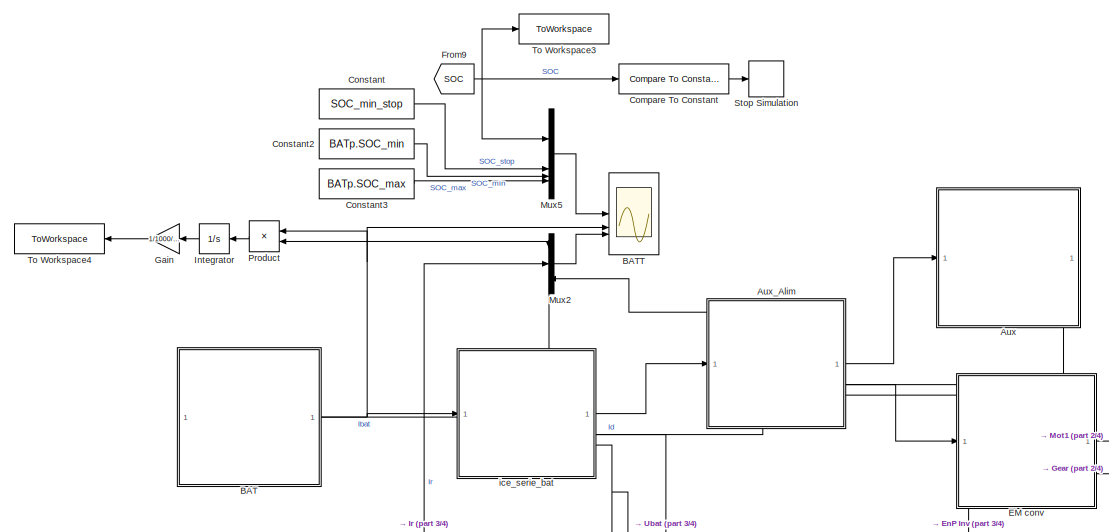
[diagram: root canvas - part 1/4, top left region]
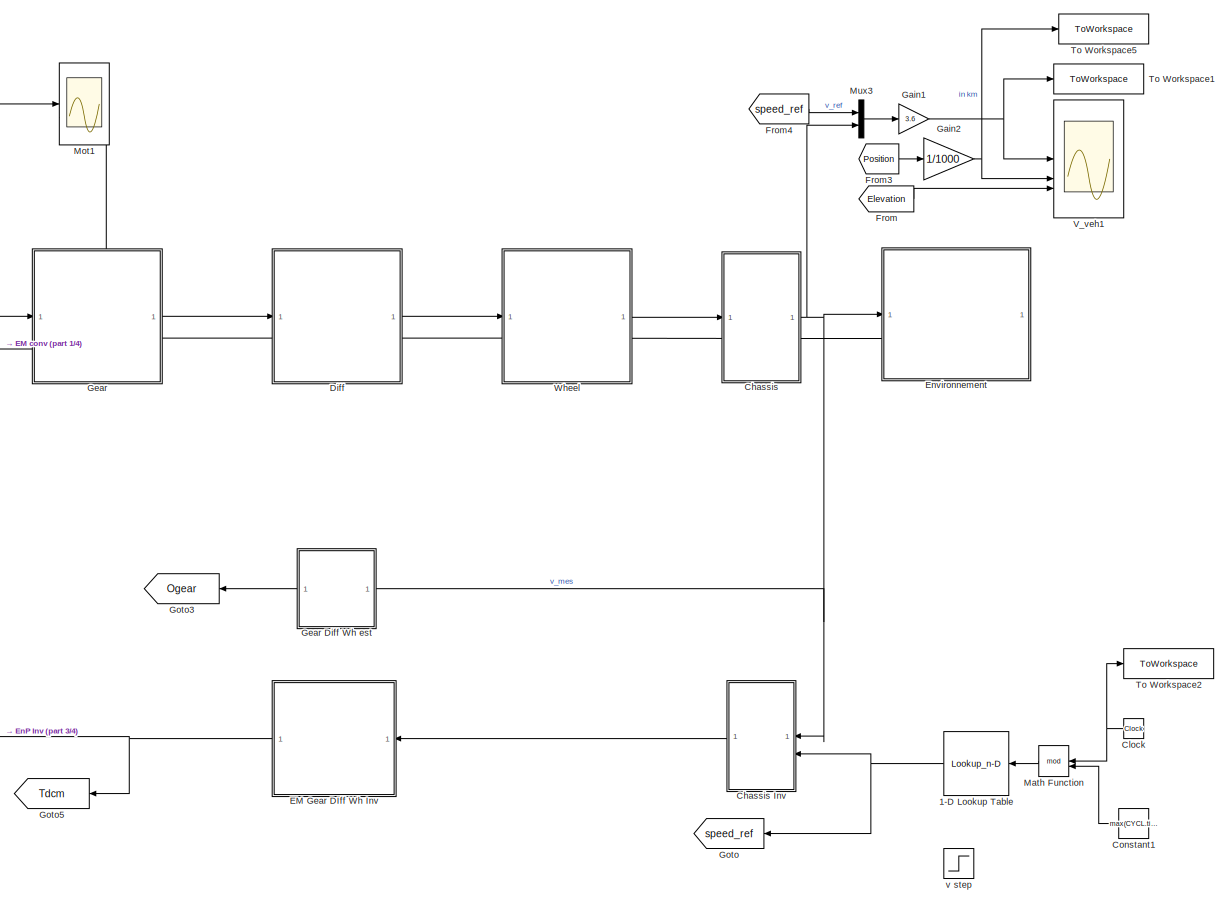
[diagram: root canvas - part 2/4, middle right region]
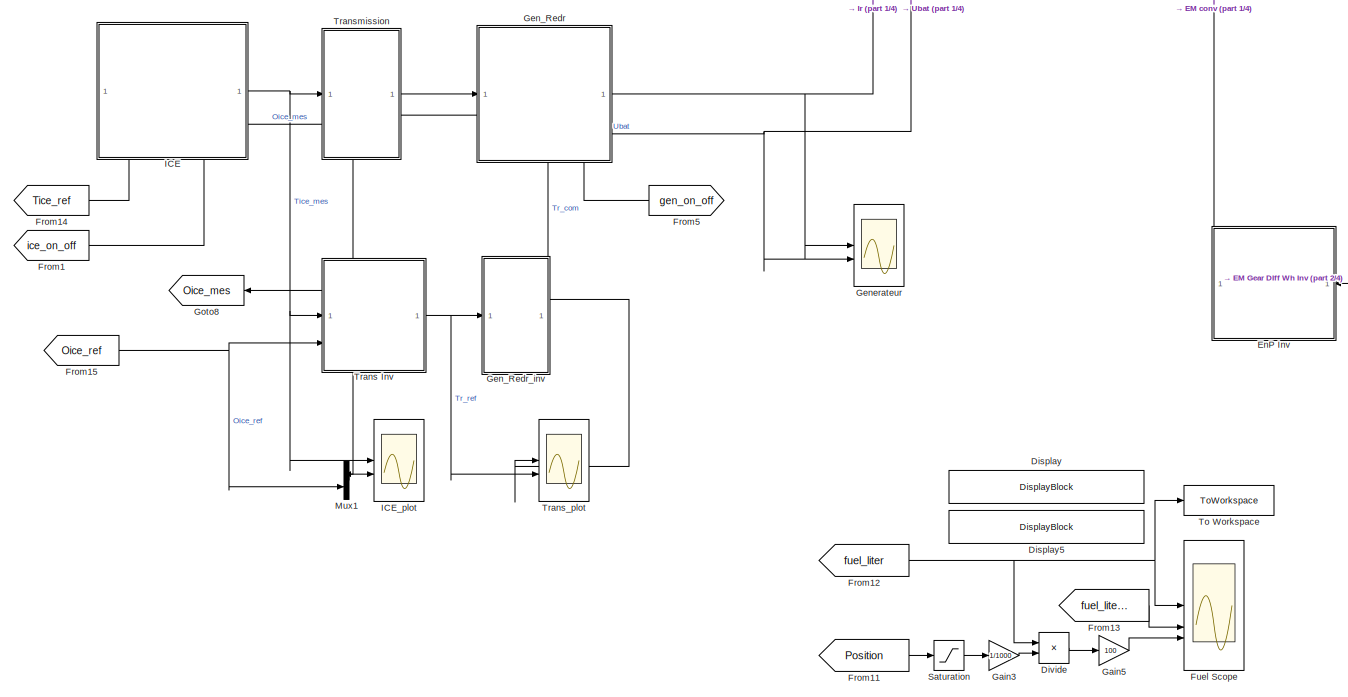
[diagram: root canvas - part 3/4, middle left region]
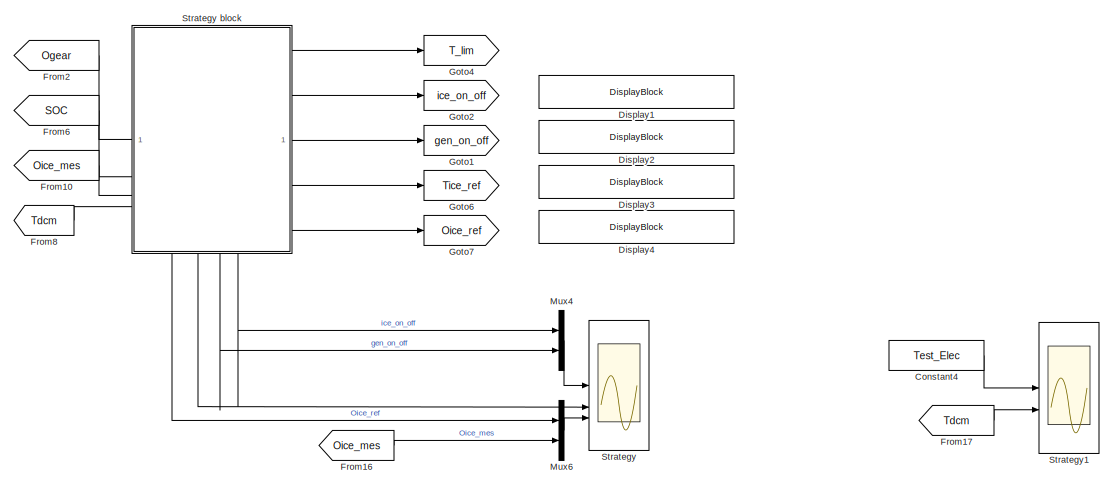
[diagram: root canvas - part 4/4, bottom right region]
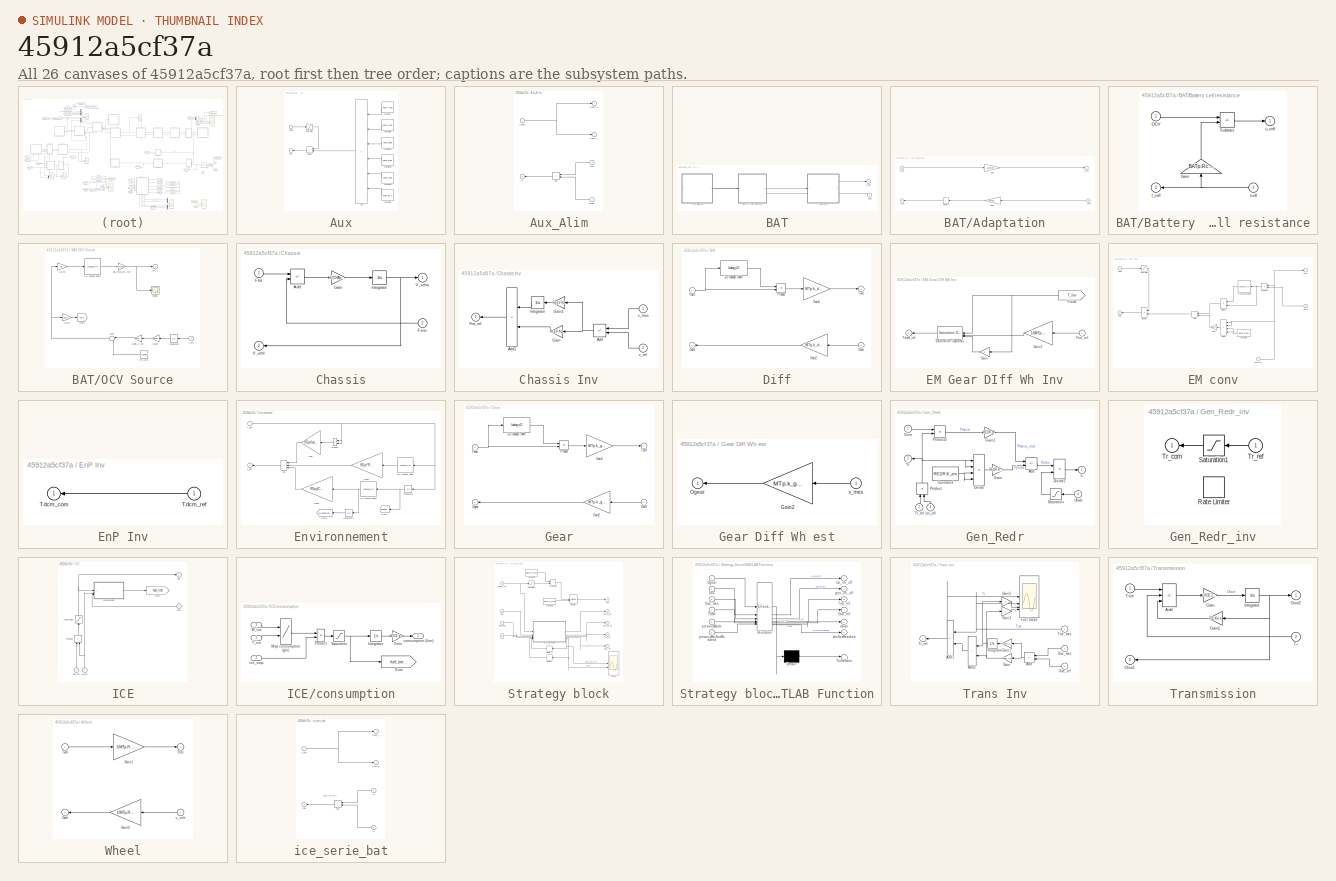
[diagram: thumbnail index - all 26 canvases of the model, root first then tree order]
MODEL slx_45912a5cf37a
KIND model
CONFIG AbsTol = auto
CONFIG EnableMultiTasking = on
CONFIG FixedStep = 1e-2
CONFIG InitFcn = init_hyv
CONFIG MaxStep = 10e-3
CONFIG MinStep = auto
CONFIG RelTol = 1e-3
CONFIG SampleTimeConstraint = Unconstrained
CONFIG SolverName = ode45
CONFIG StartTime = SIM.t_min
CONFIG StopTime = SIM.t_simul
BLOCK [Lookup_n-D] 1-D Lookup Table
  BreakpointsForDimension1 = CYCL.time
  InputPortMap = u0
  InternalRulePriority = Speed
  NameLocation = top
  NumberOfTableDimensions = 1
  RndMeth = Simplest
  Table = CYCL.speed
BLOCK [SubSystem] Aux
  PortSchema = {"entries":[{"content":{"sides":[{"content":{"connectorIds":["In1","Out1"]},"type":"ConnectorPlacement.EquallySpacedRectSide","uuid":"e57ce769-5dfa-4323-9199-18ff4bf0cf0d"},{"content":{"side":"RIGHT"},"type":"ConnectorPlacement.EquallySpacedRectSide","uuid":"ab409fab-d314-4206-bddf-ed026c86ef76"},{"content":{"side":"TOP"},"type":"ConnectorPlacement.EquallySpacedRectSide","uuid":"b908e240-8ad5-4078...<+205ch>
BLOCK [Sum] Aux/Add
  IconShape = rectangular
  Inputs = ++++++
  NameLocation = top
BLOCK [Constant] Aux/Constant
  NameLocation = top
  Value = Paux.Heat
BLOCK [Constant] Aux/Constant1
  NameLocation = top
  Value = Paux.Cool
BLOCK [Constant] Aux/Constant2
  NameLocation = top
  Value = Paux.Light
BLOCK [Constant] Aux/Constant3
  NameLocation = top
  Value = Paux.Disp
BLOCK [Constant] Aux/Constant4
  NameLocation = top
  Value = Paux.Vent
BLOCK [Constant] Aux/Constant5
  NameLocation = top
  Value = Paux.ECU
BLOCK [Product] Aux/Divide
  Inputs = /*
  NameLocation = top
BLOCK [Outport] Aux/Iaux
  InitialOutput = 0
BLOCK [Saturate] Aux/Saturation
  LowerLimit = 10.0
  UpperLimit = inf
BLOCK [Inport] Aux/Ubatt
BLOCK [SubSystem] Aux_Alim
  NameLocation = top
  PortSchema = {"entries":[{"content":{"sides":[{"content":{"connectorIds":["In1","Out3"]},"type":"ConnectorPlacement.EquallySpacedRectSide","uuid":"fe3b80e5-6bea-4454-b396-78d68e4e0983"},{"content":{"connectorIds":["Out1","In2","Out2","In3"],"side":"RIGHT"},"type":"ConnectorPlacement.EquallySpacedRectSide","uuid":"fd9b9ae6-7a3e-4ad6-b5ff-7ff0e231c6c1"},{"content":{"side":"TOP"},"type":"ConnectorPlacement.Equall...<+248ch>
BLOCK [Sum] Aux_Alim/Add
  IconShape = rectangular
  NameLocation = top
BLOCK [Inport] Aux_Alim/Iaux
  NameLocation = top
  Port = 2
BLOCK [Outport] Aux_Alim/Id
  InitialOutput = 0
  Port = 3
BLOCK [Inport] Aux_Alim/Idrive
  NameLocation = top
  Port = 3
BLOCK [Inport] Aux_Alim/Ubatt
BLOCK [Outport] Aux_Alim/Ubatt_1
  InitialOutput = 0
BLOCK [Outport] Aux_Alim/Ubatt_2
  InitialOutput = 0
  Port = 2
BLOCK [SubSystem] BAT
  PortSchema = {"entries":[{"content":{"sides":[{"content":{"connectorIds":[]},"type":"ConnectorPlacement.EquallySpacedRectSide","uuid":"f966fbbf-87fd-4eae-ac75-d366ea856ba9"},{"content":{"connectorIds":["Out1","In1"],"side":"RIGHT"},"type":"ConnectorPlacement.EquallySpacedRectSide","uuid":"019a522f-a65b-4de4-928a-6ec503aa07e1"},{"content":{"connectorIds":[],"side":"TOP"},"type":"ConnectorPlacement.EquallySpaced...<+241ch>
BLOCK [SubSystem] BAT/Adaptation
  PortSchema = {"entries":[{"content":{"sides":[{"content":{"connectorIds":["In1","Out2"]},"type":"ConnectorPlacement.EquallySpacedRectSide","uuid":"43b53794-c784-4d35-8a91-f1490638489e"},{"content":{"connectorIds":["Out1","In2"],"side":"RIGHT"},"type":"ConnectorPlacement.EquallySpacedRectSide","uuid":"00b1a1a6-7269-4083-abb9-f1208d9f3b4c"},{"content":{"connectorIds":[],"side":"TOP"},"type":"ConnectorPlacement.E...<+253ch>
BLOCK [Gain] BAT/Adaptation/Gain
  Gain = BATp.ns
BLOCK [Gain] BAT/Adaptation/Gain1
  Gain = 1/BATp.np
  NameLocation = top
BLOCK [Inport] BAT/Adaptation/I_bat
  NameLocation = top
  Port = 2
BLOCK [Memory] BAT/Adaptation/Memory
BLOCK [Outport] BAT/Adaptation/i_cell
  InitialOutput = 0
  NameLocation = top
  Port = 2
BLOCK [Outport] BAT/Adaptation/u_bat
  InitialOutput = 0
BLOCK [Inport] BAT/Adaptation/u_cell
BLOCK [SubSystem] BAT/Battery  cell resistance
  PortSchema = {"entries":[{"content":{"sides":[{"content":{"connectorIds":["In1","Out2"]},"type":"ConnectorPlacement.EquallySpacedRectSide","uuid":"43b53794-c784-4d35-8a91-f1490638489e"},{"content":{"connectorIds":["Out1","In2"],"side":"RIGHT"},"type":"ConnectorPlacement.EquallySpacedRectSide","uuid":"00b1a1a6-7269-4083-abb9-f1208d9f3b4c"},{"content":{"connectorIds":[],"side":"TOP"},"type":"ConnectorPlacement.E...<+253ch>
BLOCK [Gain] BAT/Battery  cell resistance/Gain
  Gain = BATp.Rcell
  NameLocation = right
BLOCK [Outport] BAT/Battery  cell resistance/I_cell
  InitialOutput = 0
  NameLocation = top
  Port = 2
BLOCK [Inport] BAT/Battery  cell resistance/OCV
BLOCK [Sum] BAT/Battery  cell resistance/Subtract
  IconShape = rectangular
  Inputs = +-
BLOCK [Inport] BAT/Battery  cell resistance/icell
  NameLocation = top
  Port = 2
BLOCK [Outport] BAT/Battery  cell resistance/u_cell
  InitialOutput = 0
BLOCK [SubSystem] BAT/OCV Source
  PortSchema = {"entries":[{"content":{"sides":[{"content":{"connectorIds":[]},"type":"ConnectorPlacement.EquallySpacedRectSide","uuid":"87b7c904-bcc3-4a98-87e1-6b58a76e8897"},{"content":{"connectorIds":["Out1","In1"],"side":"RIGHT"},"type":"ConnectorPlacement.EquallySpacedRectSide","uuid":"67c0e4e9-ec6a-4f26-b099-e0fb0eaa0b35"},{"content":{"connectorIds":[],"side":"TOP"},"type":"ConnectorPlacement.EquallySpaced...<+241ch>
BLOCK [Lookup_n-D] BAT/OCV Source/1-D Lookup Table
  BreakpointsForDimension1 = BATp.SoC
  InputPortMap = u0
  InternalRulePriority = Speed
  NumberOfTableDimensions = 1
  RndMeth = Simplest
  Table = BATp.OCV
BLOCK [Gain] BAT/OCV Source/1//3600
  Gain = 1/3600
  NameLocation = top
BLOCK [Gain] BAT/OCV Source/1//Bat_C_cell
  Gain = 1/BATp.Ccell
  NameLocation = top
BLOCK [Gain] BAT/OCV Source/Bat_max_cell_volt
  Gain = BATp.Unm
  NameLocation = top
BLOCK [Gain] BAT/OCV Source/Gain1
  Gain = 100.0
BLOCK [Gain] BAT/OCV Source/Gain3
  Gain = 100
BLOCK [Goto] BAT/OCV Source/Goto
  GotoTag = SOC
  TagVisibility = global
BLOCK [Inport] BAT/OCV Source/I_cell 
  NameLocation = top
BLOCK [Integrator] BAT/OCV Source/Integrator
  NameLocation = top
BLOCK [Outport] BAT/OCV Source/OCV
  InitialOutput = 0
BLOCK [Scope] BAT/OCV Source/Scope
  Floating = off
  NumInputPorts = 1
  ScopeSpecificationString = Simulink.scopes.TimeScopeBlockCfg('CurrentConfiguration', extmgr.ConfigurationSet(extmgr.Configuration('Core','General UI',true,'DisplayFullSourceName',false,'ShowMainToolbar',true),extmgr.Configuration('Sources','WiredSimulink',true,'DataLogging',false,'DataLoggingVariableName','ScopeData1','DataLoggingLimitDataPoints',false,'DataLoggingMaxPoints','5000','DataLoggingDecimateData',false,'DataLoggi...<+2002ch>
BLOCK [Sum] BAT/OCV Source/Sum
  Inputs = |-+
  NameLocation = top
BLOCK [Constant] BAT/OCV Source/init_SOC
  NameLocation = top
  Value = BATp.initSoC
BLOCK [Inport] BAT/i_bat
  NameLocation = top
BLOCK [Outport] BAT/u_bat
  InitialOutput = 0
  NameLocation = top
BLOCK [Scope] BATT
  Floating = off
  NumInputPorts = 3
  ScopeSpecificationString = Simulink.scopes.TimeScopeBlockCfg('CurrentConfiguration', extmgr.ConfigurationSet(extmgr.Configuration('Core','General UI',true,'DisplayFullSourceName',false,'ShowMainToolbar',true,'FigureColor',[1 1 1]),extmgr.Configuration('Sources','WiredSimulink',true,'DataLogging',false,'DataLoggingVariableName','ScopeData1','DataLoggingLimitDataPoints',false,'DataLoggingMaxPoints','5000','DataLoggingDecimate...<+4570ch>
BLOCK [SubSystem] Chassis
  NameLocation = top
  PortSchema = {"entries":[{"content":{"sides":[{"content":{"connectorIds":["In1","Out2"]},"type":"ConnectorPlacement.EquallySpacedRectSide","uuid":"620ffb90-6f06-474c-af56-4865758ad724"},{"content":{"connectorIds":["Out1","In2"],"side":"RIGHT"},"type":"ConnectorPlacement.EquallySpacedRectSide","uuid":"7a4bba18-9bee-4c5d-b60c-6ae6fbfa3157"},{"content":{"connectorIds":[],"side":"TOP"},"type":"ConnectorPlacement.E...<+253ch>
BLOCK [SubSystem] Chassis Inv
BLOCK [Sum] Chassis Inv/Add
  IconShape = rectangular
  Inputs = -+
  NameLocation = top
BLOCK [Sum] Chassis Inv/Add1
  IconShape = rectangular
  NameLocation = top
BLOCK [Outport] Chassis Inv/Ftot_ref
  InitialOutput = 0
BLOCK [Gain] Chassis Inv/Gain
  Gain = RegV.Kp
  NameLocation = top
BLOCK [Gain] Chassis Inv/Gain1
  Gain = RegV.Ki
  NameLocation = top
BLOCK [Integrator] Chassis Inv/Integrator
  NameLocation = top
BLOCK [Inport] Chassis Inv/v_mes
  NameLocation = top
BLOCK [Inport] Chassis Inv/v_ref
  Port = 2
BLOCK [Sum] Chassis/Add
  IconShape = rectangular
  Inputs = +-
BLOCK [Inport] Chassis/Fenv
  Port = 2
BLOCK [Inport] Chassis/Ftot
BLOCK [Gain] Chassis/Gain
  Gain = 1/(CHAp.M_eq+EMp.J*(MTp.k_gear*MTp.k_diff/MTp.R_wheel)^2)
BLOCK [Integrator] Chassis/Integrator
BLOCK [Outport] Chassis/V_veha
  InitialOutput = 0
BLOCK [Outport] Chassis/V_vehr
  InitialOutput = 0
  Port = 2
BLOCK [Clock] Clock
  NameLocation = top
BLOCK [Reference] Compare To Constant  REF=simulink/Logic and Bit
Operations/Compare
To Constant
  SourceBlock = simulink/Logic and Bit\nOperations/Compare\nTo Constant
  SourceType = Compare To Constant
BLOCK [Constant] Constant
  Value = SOC_min_stop
BLOCK [Constant] Constant1
  NameLocation = top
  Value = max(CYCL.time)+10
BLOCK [Constant] Constant2
  Value = BATp.SOC_min
BLOCK [Constant] Constant3
  Value = BATp.SOC_max
BLOCK [Constant] Constant4
  Value = Test_Elec
BLOCK [SubSystem] Diff
  NameLocation = top
  PortSchema = {"entries":[{"content":{"sides":[{"content":{"connectorIds":["In1","Out2"]},"type":"ConnectorPlacement.EquallySpacedRectSide","uuid":"61fbc010-38ff-4a80-98f4-f5d8a9e77fd8"},{"content":{"connectorIds":["Out1","In2"],"side":"RIGHT"},"type":"ConnectorPlacement.EquallySpacedRectSide","uuid":"7ae9e15d-ee0f-4ba6-b3b7-5dcbca441e0a"},{"content":{"connectorIds":[],"side":"TOP"},"type":"ConnectorPlacement.E...<+397ch>  <repeated x3 — deduplicated; at blocks: Diff, Gear, Wheel>
BLOCK [Lookup_n-D] Diff/1-D Lookup Table
  BreakpointsForDimension1 = [-500 -200 -10 0 10 200 500]
  InputPortMap = u0
  InternalRulePriority = Speed
  NumberOfTableDimensions = 1
  RndMeth = Simplest
  Table = [1/MTp.diff_eff 1/MTp.diff_eff 1/MTp.diff_eff 0 MTp.diff_eff MTp.diff_eff MTp.diff_eff]
BLOCK [Gain] Diff/Gain1
  Gain = MTp.k_diff
BLOCK [Gain] Diff/Gain2
  Gain = MTp.k_diff
  NameLocation = top
BLOCK [Outport] Diff/Odiff
  InitialOutput = 0
  Port = 2
BLOCK [Inport] Diff/Owh
  Port = 2
BLOCK [Product] Diff/Product
BLOCK [Inport] Diff/Tdiff
BLOCK [Outport] Diff/Twh
  InitialOutput = 0
BLOCK [DisplayBlock] Display
  Format = Custom
  FormatString = SOC: %.2f %%
  LabelPosition = Hide
  Transparency = 1
BLOCK [DisplayBlock] Display1
  Format = Custom
  FormatString = ICE ON: %d
  LabelPosition = Hide
  Transparency = 1
BLOCK [DisplayBlock] Display2
  Format = Custom
  FormatString = GEN ON: %d
  LabelPosition = Hide
  Transparency = 1
BLOCK [DisplayBlock] Display3
  Format = Custom
  FormatString = Tice_ref: %.3g Nm
  LabelPosition = Hide
  Transparency = 1
BLOCK [DisplayBlock] Display4
  Format = Custom
  FormatString = Oice_ref: %.3g rad/s
  LabelPosition = Hide
  Transparency = 1
BLOCK [DisplayBlock] Display5
  Format = Custom
  FormatString = Total fuel: %.2f liters
  LabelPosition = Hide
  Transparency = 1
BLOCK [Product] Divide
  Inputs = */
BLOCK [SubSystem] EM Gear DIff Wh Inv
BLOCK [From] EM Gear DIff Wh Inv/From6
  GotoTag = T_lim
  NameLocation = top
  TagVisibility = global
BLOCK [Inport] EM Gear DIff Wh Inv/Ftot_ref
  NameLocation = top
BLOCK [Gain] EM Gear DIff Wh Inv/Gain
  Gain = -1
  NameLocation = top
BLOCK [Gain] EM Gear DIff Wh Inv/Gain2
  Gain = 1/(MTp.k_gear*MTp.k_diff/MTp.R_wheel)
  NameLocation = top
BLOCK [Reference] EM Gear DIff Wh Inv/Saturation Dynamic  REF=simulink/Discontinuities/Saturation
Dynamic
  NameLocation = top
  SourceBlock = simulink/Discontinuities/Saturation\nDynamic
  SourceType = Saturation Dynamic
BLOCK [Outport] EM Gear DIff Wh Inv/Tdcm_ref
  InitialOutput = 0
BLOCK [SubSystem] EM conv
  NameLocation = top
  PortSchema = {"entries":[{"content":{"sides":[{"content":{"connectorIds":["In1","Out2"]},"type":"ConnectorPlacement.EquallySpacedRectSide","uuid":"aa766bd2-1e00-44a9-a500-41c2a98848e3"},{"content":{"connectorIds":["Out1","In3"],"side":"RIGHT"},"type":"ConnectorPlacement.EquallySpacedRectSide","uuid":"49bb6889-ad6c-456e-94dd-aff29c8ca84c"},{"content":{"side":"TOP"},"type":"ConnectorPlacement.EquallySpacedRectSi...<+384ch>
BLOCK [Lookup_n-D] EM conv/1-D Lookup Table
  BreakpointsForDimension1 = [-150e3 -10 0 10 150e3]
  InputPortMap = u0
  InternalRulePriority = Speed
  NameLocation = top
  NumberOfTableDimensions = 1
  RndMeth = Simplest
  Table = [EDp.eff EDp.eff 1 1/EDp.eff 1/EDp.eff]
BLOCK [Sum] EM conv/Add
  IconShape = rectangular
  NameLocation = top
BLOCK [Constant] EM conv/Constant1
  NameLocation = top
  Value = EMp.K_em
BLOCK [Product] EM conv/Divide
  Inputs = **//
  NameLocation = top
BLOCK [Product] EM conv/Divide1
  Inputs = **
  NameLocation = top
BLOCK [Product] EM conv/Divide2
  Inputs = /*
  NameLocation = top
BLOCK [Gain] EM conv/Gain
  Gain = EMp.R_arm
  NameLocation = top
BLOCK [Outport] EM conv/Ibatt
  InitialOutput = 0
  Port = 2
BLOCK [Inport] EM conv/Ogear
  Port = 3
BLOCK [Product] EM conv/Product2
  NameLocation = top
BLOCK [Saturate] EM conv/Saturation
  LowerLimit = 1.0
  UpperLimit = inf
BLOCK [Outport] EM conv/Tdcm
  InitialOutput = 0
BLOCK [Inport] EM conv/Tdcm_ref
  Port = 2
BLOCK [Inport] EM conv/Ubatt
BLOCK [SubSystem] EnP Inv
  PortSchema = {"entries":[{"content":{"sides":[{"content":{"connectorIds":["In1"]},"type":"ConnectorPlacement.EquallySpacedRectSide","uuid":"39dcb6ca-7d3c-49e9-8aff-6e45c752a7e4"},{"content":{"side":"RIGHT"},"type":"ConnectorPlacement.EquallySpacedRectSide","uuid":"f02eeddd-07d1-428e-b420-27aa15bc8886"},{"content":{"connectorIds":["Out1"],"side":"TOP"},"type":"ConnectorPlacement.EquallySpacedRectSide","uuid":"7...<+222ch>
BLOCK [Outport] EnP Inv/Tdcm_com
  InitialOutput = 0
BLOCK [Inport] EnP Inv/Tdcm_ref
  NameLocation = top
BLOCK [SubSystem] Environnement
  PortSchema = {"entries":[{"content":{"sides":[{"content":{"connectorIds":["In1","Out1"]},"type":"ConnectorPlacement.EquallySpacedRectSide","uuid":"f966fbbf-87fd-4eae-ac75-d366ea856ba9"},{"content":{"connectorIds":[],"side":"RIGHT"},"type":"ConnectorPlacement.EquallySpacedRectSide","uuid":"019a522f-a65b-4de4-928a-6ec503aa07e1"},{"content":{"connectorIds":[],"side":"TOP"},"type":"ConnectorPlacement.EquallySpaced...<+241ch>
BLOCK [Lookup_n-D] Environnement/1-D Lookup Table
  BreakpointsForDimension1 = [-100 -1 0 1 100]
  InputPortMap = u0
  InternalRulePriority = Speed
  NameLocation = top
  NumberOfTableDimensions = 1
  RndMeth = Simplest
  Table = [-1 -1 0 1 1]
BLOCK [Lookup_n-D] Environnement/1-D Lookup Table1
  BreakpointsForDimension1 = CYCL.position
  InputPortMap = u0
  InternalRulePriority = Speed
  NameLocation = top
  NumberOfTableDimensions = 1
  RndMeth = Simplest
  Table = CYCL.slope
BLOCK [Sum] Environnement/Add
  IconShape = rectangular
  Inputs = +++
BLOCK [Outport] Environnement/F_env
  InitialOutput = 0
  NameLocation = top
BLOCK [Gain] Environnement/Gain
  Gain = RDp.Kaero
  NameLocation = top
  OutDataTypeStr = Inherit: Same as input
  ParamDataTypeStr = Inherit: Same as input
  SaturateOnIntegerOverflow = on
BLOCK [Gain] Environnement/Gain1
  Gain = RDp.f*RDp.g*CHAp.M_eq
  NameLocation = top
  OutDataTypeStr = Inherit: Same as input
  ParamDataTypeStr = Inherit: Same as input
  SaturateOnIntegerOverflow = on
BLOCK [Gain] Environnement/Gain2
  Gain = RDp.g*CHAp.M_eq
  NameLocation = top
  OutDataTypeStr = Inherit: Same as input
  ParamDataTypeStr = Inherit: Same as input
  SaturateOnIntegerOverflow = on
BLOCK [Goto] Environnement/Goto
  GotoTag = Position
  NameLocation = top
  TagVisibility = global
BLOCK [Goto] Environnement/Goto1
  GotoTag = Elevation
  NameLocation = top
  TagVisibility = global
BLOCK [Integrator] Environnement/Integrator
  NameLocation = top
BLOCK [Integrator] Environnement/Integrator1
  NameLocation = top
BLOCK [Product] Environnement/Product
  InputSameDT = on
  OutDataTypeStr = Inherit: Same as first input
  SaturateOnIntegerOverflow = on
BLOCK [Inport] Environnement/v_veh
  NameLocation = top
BLOCK [From] From
  GotoTag = Elevation
  TagVisibility = global
BLOCK [From] From1
  GotoTag = ice_on_off
  TagVisibility = global
BLOCK [From] From10
  GotoTag = Oice_mes
  TagVisibility = global
BLOCK [From] From11
  GotoTag = Position
  TagVisibility = global
BLOCK [From] From12
  GotoTag = fuel_liter
  TagVisibility = global
BLOCK [From] From13
  GotoTag = fuel_liter_gps
  TagVisibility = global
BLOCK [From] From14
  GotoTag = Tice_ref
  TagVisibility = global
BLOCK [From] From15
  GotoTag = Oice_ref
  TagVisibility = global
BLOCK [From] From16
  GotoTag = Oice_mes
  NameLocation = top
  TagVisibility = global
BLOCK [From] From17
  GotoTag = Tdcm
  NameLocation = top
  TagVisibility = global
BLOCK [From] From2
  GotoTag = Ogear
BLOCK [From] From3
  GotoTag = Position
  TagVisibility = global
BLOCK [From] From4
  GotoTag = speed_ref
BLOCK [From] From5
  GotoTag = gen_on_off
  NameLocation = top
  TagVisibility = global
BLOCK [From] From6
  GotoTag = SOC
  TagVisibility = global
BLOCK [From] From8
  GotoTag = Tdcm
  TagVisibility = global
BLOCK [From] From9
  GotoTag = SOC
  TagVisibility = global
BLOCK [Scope] Fuel Scope
  Floating = off
  NumInputPorts = 3
  ScopeSpecificationString = Simulink.scopes.TimeScopeBlockCfg('CurrentConfiguration', extmgr.ConfigurationSet(extmgr.Configuration('Core','General UI',true,'DisplayFullSourceName',false,'ShowMainToolbar',true,'FigureColor',[1 1 1]),extmgr.Configuration('Sources','WiredSimulink',true,'DataLogging',false,'DataLoggingVariableName','ScopeData1','DataLoggingLimitDataPoints',false,'DataLoggingMaxPoints','5000','DataLoggingDecimate...<+3764ch>
BLOCK [Gain] Gain
  Gain = 1/1000/3600
  NameLocation = top
BLOCK [Gain] Gain1
  Gain = 3.6
BLOCK [Gain] Gain2
  Gain = 1/1000
BLOCK [Gain] Gain3
  Gain = 1/1000
BLOCK [Gain] Gain5
  Gain = 100
BLOCK [SubSystem] Gear
  NameLocation = top
BLOCK [SubSystem] Gear Diff Wh est
  PortSchema = {"entries":[{"content":{"sides":[{"content":{"connectorIds":["Out1"]},"type":"ConnectorPlacement.EquallySpacedRectSide","uuid":"97b10c34-40f1-482d-a289-d09ab630d3a5"},{"content":{"connectorIds":["In1"],"side":"RIGHT"},"type":"ConnectorPlacement.EquallySpacedRectSide","uuid":"48711657-cfab-4e40-bd05-7e981abf95c6"},{"content":{"connectorIds":[],"side":"TOP"},"type":"ConnectorPlacement.EquallySpacedR...<+240ch>
BLOCK [Gain] Gear Diff Wh est/Gain2
  Gain = MTp.k_gear*MTp.k_diff/MTp.R_wheel
  NameLocation = top
BLOCK [Outport] Gear Diff Wh est/Ogear
  InitialOutput = 0
BLOCK [Inport] Gear Diff Wh est/v_mes
  NameLocation = top
BLOCK [Lookup_n-D] Gear/1-D Lookup Table
  BreakpointsForDimension1 = [-500 -200 -10 0 10 200 500]
  InputPortMap = u0
  InternalRulePriority = Speed
  NumberOfTableDimensions = 1
  RndMeth = Simplest
  Table = [1/MTp.Gear_eff 1/MTp.Gear_eff 1/MTp.Gear_eff 0 MTp.Gear_eff MTp.Gear_eff MTp.Gear_eff]
BLOCK [Gain] Gear/Gain1
  Gain = MTp.k_gear
BLOCK [Gain] Gear/Gain2
  Gain = MTp.k_gear
  NameLocation = top
BLOCK [Inport] Gear/Odiff
  Port = 2
BLOCK [Outport] Gear/Ogear
  InitialOutput = 0
  Port = 2
BLOCK [Product] Gear/Product
BLOCK [Inport] Gear/Tdcm
BLOCK [Outport] Gear/Tdiff
  InitialOutput = 0
BLOCK [SubSystem] Gen_Redr
  NameLocation = top
  PortSchema = {"entries":[{"content":{"sides":[{"content":{"connectorIds":["In1","Out2"]},"type":"ConnectorPlacement.EquallySpacedRectSide","uuid":"aa766bd2-1e00-44a9-a500-41c2a98848e3"},{"content":{"connectorIds":["Out1","In4"],"side":"RIGHT"},"type":"ConnectorPlacement.EquallySpacedRectSide","uuid":"49bb6889-ad6c-456e-94dd-aff29c8ca84c"},{"content":{"side":"TOP"},"type":"ConnectorPlacement.EquallySpacedRectSi...<+390ch>
BLOCK [Sum] Gen_Redr/Add
  IconShape = rectangular
  Inputs = +-
BLOCK [Constant] Gen_Redr/Constant1
  Value = REDR.K_em
BLOCK [Product] Gen_Redr/Divide
  Inputs = **//
BLOCK [Product] Gen_Redr/Divide2
  Inputs = */
BLOCK [Gain] Gen_Redr/Gain
  Gain = REDR.R_arm
BLOCK [Gain] Gen_Redr/Gain1
  Gain = REDR.eff
BLOCK [Outport] Gen_Redr/Ir
  InitialOutput = 0
  NameLocation = top
BLOCK [Inport] Gen_Redr/Oice
  NameLocation = top
BLOCK [Product] Gen_Redr/Product
  NameLocation = right
  RndMeth = Zero
BLOCK [Product] Gen_Redr/Product2
BLOCK [Saturate] Gen_Redr/Saturation
  LowerLimit = 1.0
  NameLocation = top
  UpperLimit = inf
BLOCK [Outport] Gen_Redr/Tr
  InitialOutput = 0
  NameLocation = top
  Port = 2
BLOCK [Inport] Gen_Redr/Tr_ref
  NameLocation = left
  Port = 2
BLOCK [Inport] Gen_Redr/Ubatt
  NameLocation = top
  Port = 4
BLOCK [Inport] Gen_Redr/on_off
  NameLocation = right
  Port = 3
BLOCK [SubSystem] Gen_Redr_inv
  PortSchema = {"entries":[{"content":{"sides":[{"content":{"connectorIds":["In1"]},"type":"ConnectorPlacement.EquallySpacedRectSide","uuid":"50329911-3527-4871-b68d-129915521763"},{"content":{"side":"RIGHT"},"type":"ConnectorPlacement.EquallySpacedRectSide","uuid":"498640d9-bf48-4388-8f8c-046e024247a6"},{"content":{"connectorIds":["Out1"],"side":"TOP"},"type":"ConnectorPlacement.EquallySpacedRectSide","uuid":"2...<+222ch>
BLOCK [RateLimiter] Gen_Redr_inv/Rate Limiter
  Commented = on
  FallingSlewLimit = -100
  NameLocation = top
  RisingSlewLimit = 100
  SampleTimeMode = inherited
BLOCK [Saturate] Gen_Redr_inv/Saturation1
  LowerLimit = -ICE.Torque_max
  NameLocation = top
  UpperLimit = ICE.Torque_max
BLOCK [Outport] Gen_Redr_inv/Tr_com
  InitialOutput = 0
BLOCK [Inport] Gen_Redr_inv/Tr_ref
BLOCK [Scope] Generateur
  Floating = off
  NumInputPorts = 2
  ScopeSpecificationString = Simulink.scopes.TimeScopeBlockCfg('CurrentConfiguration', extmgr.ConfigurationSet(extmgr.Configuration('Core','General UI',true,'DisplayFullSourceName',false,'ShowMainToolbar',true,'FigureColor',[1 1 1]),extmgr.Configuration('Sources','WiredSimulink',true,'DataLogging',false,'DataLoggingVariableName','ScopeData','DataLoggingLimitDataPoints',false,'DataLoggingMaxPoints','5000','DataLoggingDecimateD...<+2907ch>
BLOCK [Goto] Goto
  GotoTag = speed_ref
  NameLocation = top
BLOCK [Goto] Goto1
  GotoTag = gen_on_off
  TagVisibility = global
BLOCK [Goto] Goto2
  GotoTag = ice_on_off
  TagVisibility = global
BLOCK [Goto] Goto3
  GotoTag = Ogear
  NameLocation = top
BLOCK [Goto] Goto4
  GotoTag = T_lim
  TagVisibility = global
BLOCK [Goto] Goto5
  GotoTag = Tdcm
  NameLocation = top
  TagVisibility = global
BLOCK [Goto] Goto6
  GotoTag = Tice_ref
  TagVisibility = global
BLOCK [Goto] Goto7
  GotoTag = Oice_ref
  TagVisibility = global
BLOCK [Goto] Goto8
  GotoTag = Oice_mes
  NameLocation = top
  TagVisibility = global
BLOCK [SubSystem] ICE
  PortSchema = {"entries":[{"content":{"sides":[{"content":{},"type":"ConnectorPlacement.EquallySpacedRectSide","uuid":"5e0004dc-9353-4505-bdf1-6128bddb82fb"},{"content":{"connectorIds":["Out1","In3"],"side":"RIGHT"},"type":"ConnectorPlacement.EquallySpacedRectSide","uuid":"6fc81608-8d8e-4e86-94d9-80743178a522"},{"content":{"side":"TOP"},"type":"ConnectorPlacement.EquallySpacedRectSide","uuid":"4904ac3e-9806-48b...<+361ch>
BLOCK [Goto] ICE/Goto
  GotoTag = fuel_liter
  TagVisibility = global
BLOCK [Inport] ICE/Oice
  Port = 3
BLOCK [Product] ICE/Product
  NameLocation = right
  RndMeth = Zero
BLOCK [Saturate] ICE/Saturation
  LowerLimit = 0
  NameLocation = right
  UpperLimit = 102
BLOCK [Outport] ICE/Tice
  InitialOutput = 0
  NameLocation = top
  VectorParamsAs1DForOutWhenUnconnected = off
BLOCK [Inport] ICE/Tice_ref
  NameLocation = left
BLOCK [SubSystem] ICE/consumption
BLOCK [Gain] ICE/consumption/Gain
  Gain = 1/ICE.gas_dens
  OutDataTypeStr = Inherit: Same as input
  ParamDataTypeStr = Inherit: Same as input
  SaturateOnIntegerOverflow = on
BLOCK [Goto] ICE/consumption/Goto
  GotoTag = fuel_liter_gps
  TagVisibility = global
BLOCK [Integrator] ICE/consumption/Integrator
  LowerSaturationLimit = 0
BLOCK [Lookup2D] ICE/consumption/Map consumption (g//s)
  ColumnIndex = ICE.Torque_def
  RowIndex = ICE.Omega_def
  Table = ICE.Fuel_consumption
BLOCK [Product] ICE/consumption/Product
  RndMeth = Zero
BLOCK [Saturate] ICE/consumption/Saturation
  LowerLimit = 0
  UpperLimit = Inf
BLOCK [Inport] ICE/consumption/T_ice
BLOCK [Inport] ICE/consumption/W_ice
  NameLocation = top
  Port = 3
BLOCK [Outport] ICE/consumption/consumption (liter)
  InitialOutput = 0
  VectorParamsAs1DForOutWhenUnconnected = off
BLOCK [Inport] ICE/consumption/ice_stop
  Port = 2
BLOCK [Inport] ICE/on_off
  NameLocation = right
  Port = 2
BLOCK [Scope] ICE_plot
  Floating = off
  NumInputPorts = 2
  ScopeSpecificationString = Simulink.scopes.TimeScopeBlockCfg('CurrentConfiguration', extmgr.ConfigurationSet(extmgr.Configuration('Core','General UI',true,'DisplayFullSourceName',false,'ShowMainToolbar',true,'FigureColor',[1 1 1]),extmgr.Configuration('Sources','WiredSimulink',true,'DataLogging',false,'DataLoggingVariableName','ScopeData2','DataLoggingLimitDataPoints',false,'DataLoggingMaxPoints','5000','DataLoggingDecimate...<+3076ch>
BLOCK [Integrator] Integrator
  NameLocation = top
BLOCK [Math] Math Function
  NameLocation = top
  Operator = mod
BLOCK [Scope] Mot1
  Floating = off
  NumInputPorts = 2
  ScopeSpecificationString = Simulink.scopes.TimeScopeBlockCfg('CurrentConfiguration', extmgr.ConfigurationSet(extmgr.Configuration('Core','General UI',true,'DisplayFullSourceName',false,'ShowMainToolbar',true,'FigureColor',[1 1 1]),extmgr.Configuration('Sources','WiredSimulink',true,'DataLogging',false,'DataLoggingVariableName','ScopeData1','DataLoggingLimitDataPoints',false,'DataLoggingMaxPoints','5000','DataLoggingDecimate...<+2925ch>
BLOCK [Mux] Mux1
  DisplayOption = bar
  Inputs = 2
BLOCK [Mux] Mux2
  DisplayOption = bar
  Inputs = 3
BLOCK [Mux] Mux3
  DisplayOption = bar
  Inputs = 2
BLOCK [Mux] Mux4
  DisplayOption = bar
  Inputs = 2
BLOCK [Mux] Mux5
  DisplayOption = bar
BLOCK [Mux] Mux6
  DisplayOption = bar
  Inputs = 2
BLOCK [Product] Product
  NameLocation = top
BLOCK [Saturate] Saturation
  LowerLimit = 10.0
  UpperLimit = inf
BLOCK [Stop] Stop Simulation
BLOCK [Scope] Strategy
  Floating = off
  NumInputPorts = 3
  ScopeSpecificationString = Simulink.scopes.TimeScopeBlockCfg('CurrentConfiguration', extmgr.ConfigurationSet(extmgr.Configuration('Core','General UI',true,'DisplayFullSourceName',false,'ShowMainToolbar',true,'FigureColor',[1 1 1]),extmgr.Configuration('Sources','WiredSimulink',true,'DataLogging',false,'DataLoggingVariableName','ScopeData4','DataLoggingLimitDataPoints',false,'DataLoggingMaxPoints','5000','DataLoggingDecimate...<+4050ch>
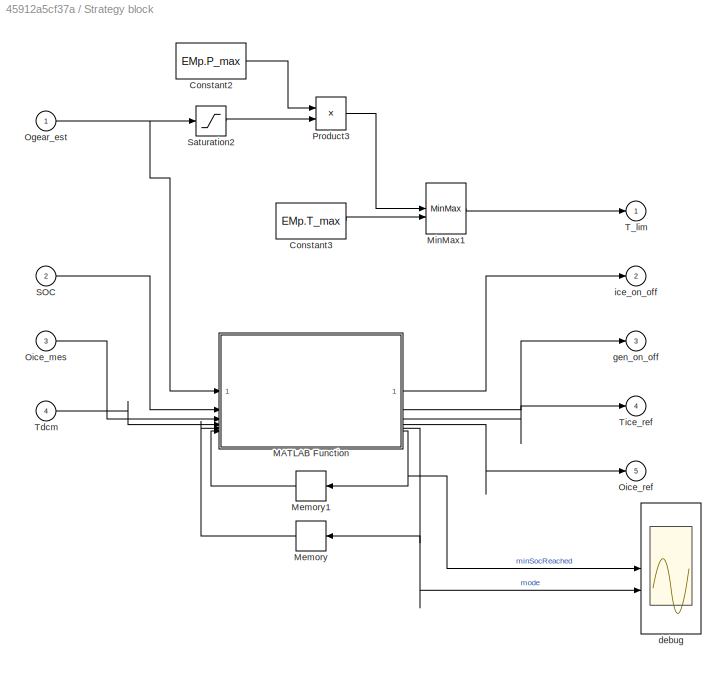
BLOCK [SubSystem] Strategy block
  PortSchema = {"entries":[{"content":{"sides":[{"content":{"connectorIds":["Out1","Out2","Out3","Out4","Out5"]},"type":"ConnectorPlacement.EquallySpacedRectSide","uuid":"4c676ab4-47cc-4f87-ad93-ce3a4db5a06a"},{"content":{"connectorIds":["In1","In2","In3","In4"],"side":"RIGHT"},"type":"ConnectorPlacement.EquallySpacedRectSide","uuid":"84b1a57b-73c9-4ed3-8724-d96f85b248dd"},{"content":{"side":"TOP"},"type":"Conne...<+268ch>
  ShowPortLabels = FromPortBlockName
BLOCK [Constant] Strategy block/Constant2
  Value = EMp.P_max
BLOCK [Constant] Strategy block/Constant3
  Value = EMp.T_max
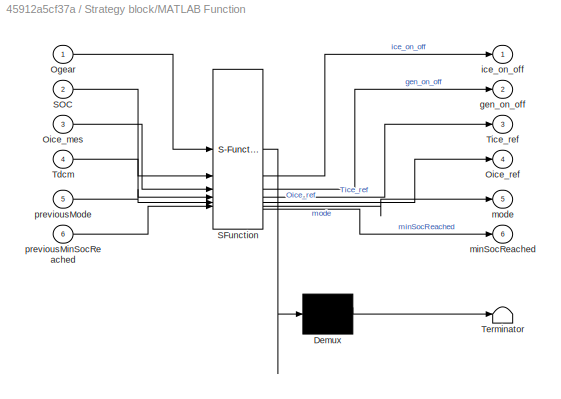
BLOCK [SubSystem] Strategy block/MATLAB Function
  ErrorFcn = Stateflow.Translate.translate
  PermitHierarchicalResolution = ExplicitOnly
  SFBlockType = MATLAB Function
  TreatAsAtomicUnit = on
BLOCK [Demux] Strategy block/MATLAB Function/ Demux 
  Outputs = 1
BLOCK [S-Function] Strategy block/MATLAB Function/ SFunction 
  EnableBusSupport = off
  FunctionName = sf_sfun
  Parameters = BATp,SOC_min_stop,Test_Elec
  PortCounts = [6 7]
  SFcnIsStateOwnerBlock = off
  SFunctionDeploymentMode = off
  Tag = Stateflow S-Function 2
BLOCK [Terminator] Strategy block/MATLAB Function/ Terminator 
BLOCK [Inport] Strategy block/MATLAB Function/Ogear
BLOCK [Inport] Strategy block/MATLAB Function/Oice_mes
  Port = 3
BLOCK [Outport] Strategy block/MATLAB Function/Oice_ref
  Port = 4
BLOCK [Inport] Strategy block/MATLAB Function/SOC
  Port = 2
BLOCK [Inport] Strategy block/MATLAB Function/Tdcm
  Port = 4
BLOCK [Outport] Strategy block/MATLAB Function/Tice_ref
  Port = 3
BLOCK [Outport] Strategy block/MATLAB Function/gen_on_off
  Port = 2
BLOCK [Outport] Strategy block/MATLAB Function/ice_on_off
BLOCK [Outport] Strategy block/MATLAB Function/minSocReached
  Port = 6
BLOCK [Outport] Strategy block/MATLAB Function/mode
  Port = 5
BLOCK [Inport] Strategy block/MATLAB Function/previousMinSocReached
  Port = 6
BLOCK [Inport] Strategy block/MATLAB Function/previousMode
  Port = 5
BLOCK [Memory] Strategy block/Memory
  NameLocation = top
BLOCK [Memory] Strategy block/Memory1
  NameLocation = top
BLOCK [MinMax] Strategy block/MinMax1
  Inputs = 2
BLOCK [Inport] Strategy block/Ogear_est
BLOCK [Inport] Strategy block/Oice_mes
  Port = 3
BLOCK [Outport] Strategy block/Oice_ref
  InitialOutput = 0
  NameLocation = top
  Port = 5
BLOCK [Product] Strategy block/Product3
  Inputs = */
BLOCK [Inport] Strategy block/SOC
  Port = 2
BLOCK [Saturate] Strategy block/Saturation2
  LowerLimit = 10.0
  UpperLimit = Inf
BLOCK [Outport] Strategy block/T_lim
  InitialOutput = 0
  NameLocation = top
BLOCK [Inport] Strategy block/Tdcm
  Port = 4
BLOCK [Outport] Strategy block/Tice_ref
  InitialOutput = 0
  NameLocation = top
  Port = 4
BLOCK [Scope] Strategy block/debug
  Floating = off
  NumInputPorts = 2
  ScopeSpecificationString = Simulink.scopes.TimeScopeBlockCfg('CurrentConfiguration', extmgr.ConfigurationSet(extmgr.Configuration('Core','General UI',true,'DisplayFullSourceName',false,'ShowMainToolbar',true,'FigureColor',[1 1 1]),extmgr.Configuration('Sources','WiredSimulink',true,'DataLogging',false,'DataLoggingVariableName','ScopeData7','DataLoggingLimitDataPoints',false,'DataLoggingMaxPoints','5000','DataLoggingDecimate...<+2997ch>
BLOCK [Outport] Strategy block/gen_on_off
  InitialOutput = 0
  NameLocation = top
  Port = 3
BLOCK [Outport] Strategy block/ice_on_off
  InitialOutput = 0
  NameLocation = top
  Port = 2
BLOCK [Scope] Strategy1
  Floating = off
  NumInputPorts = 2
  ScopeSpecificationString = Simulink.scopes.TimeScopeBlockCfg('CurrentConfiguration', extmgr.ConfigurationSet(extmgr.Configuration('Core','General UI',true,'DisplayFullSourceName',false,'ShowMainToolbar',true,'FigureColor',[1 1 1]),extmgr.Configuration('Sources','WiredSimulink',true,'DataLogging',false,'DataLoggingVariableName','ScopeData5','DataLoggingLimitDataPoints',false,'DataLoggingMaxPoints','5000','DataLoggingDecimate...<+3025ch>
BLOCK [ToWorkspace] To Workspace
  FixptAsFi = on
  MaxDataPoints = 1
  SampleTime = -1
  VariableName = Liter_Final
BLOCK [ToWorkspace] To Workspace1
  FixptAsFi = on
  MaxDataPoints = inf
  SampleTime = -1
  VariableName = speed_km_h
BLOCK [ToWorkspace] To Workspace2
  FixptAsFi = on
  MaxDataPoints = 1
  SampleTime = -1
  VariableName = Time_Final
BLOCK [ToWorkspace] To Workspace3
  FixptAsFi = on
  MaxDataPoints = 1
  SampleTime = -1
  VariableName = SOC_Final
BLOCK [ToWorkspace] To Workspace4
  FixptAsFi = on
  MaxDataPoints = 1
  NameLocation = top
  SampleTime = -1
  VariableName = kWh_Final
BLOCK [ToWorkspace] To Workspace5
  FixptAsFi = on
  MaxDataPoints = 1
  SampleTime = -1
  VariableName = Distance_Final
BLOCK [SubSystem] Trans Inv
BLOCK [Sum] Trans Inv/Add
  IconShape = rectangular
  Inputs = -+
  NameLocation = top
BLOCK [Sum] Trans Inv/Add1
  IconShape = rectangular
  Inputs = +-
  NameLocation = top
BLOCK [Sum] Trans Inv/Add2
  IconShape = rectangular
  NameLocation = top
BLOCK [Scope] Trans Inv/Fuel Scope
  Floating = off
  NumInputPorts = 4
  ScopeSpecificationString = Simulink.scopes.TimeScopeBlockCfg('CurrentConfiguration', extmgr.ConfigurationSet(extmgr.Configuration('Core','General UI',true,'DisplayFullSourceName',false,'ShowMainToolbar',true,'FigureColor',[1 1 1]),extmgr.Configuration('Sources','WiredSimulink',true,'DataLogging',false,'DataLoggingVariableName','ScopeData6','DataLoggingLimitDataPoints',false,'DataLoggingMaxPoints','5000','DataLoggingDecimate...<+2480ch>
BLOCK [Gain] Trans Inv/Gain
  Gain = RegTr.Kp
  NameLocation = top
BLOCK [Gain] Trans Inv/Gain1
  Gain = RegTr.Ki
  NameLocation = top
BLOCK [Gain] Trans Inv/Gain2
  Gain = -1
  NameLocation = top
BLOCK [Gain] Trans Inv/Gain3
  Gain = -1
  NameLocation = top
BLOCK [Integrator] Trans Inv/Integrator
  NameLocation = top
BLOCK [Inport] Trans Inv/Oice_mes
  Port = 2
BLOCK [Inport] Trans Inv/Oice_ref
  Port = 3
BLOCK [Inport] Trans Inv/Tice_mes
BLOCK [Outport] Trans Inv/Tr_ref
  InitialOutput = 0
BLOCK [Scope] Trans_plot
  Floating = off
  NumInputPorts = 2
  ScopeSpecificationString = Simulink.scopes.TimeScopeBlockCfg('CurrentConfiguration', extmgr.ConfigurationSet(extmgr.Configuration('Core','General UI',true,'DisplayFullSourceName',false,'ShowMainToolbar',true,'FigureColor',[1 1 1]),extmgr.Configuration('Sources','WiredSimulink',true,'DataLogging',false,'DataLoggingVariableName','ScopeData3','DataLoggingLimitDataPoints',false,'DataLoggingMaxPoints','5000','DataLoggingDecimate...<+2253ch>
BLOCK [SubSystem] Transmission
  NameLocation = top
  PortSchema = {"entries":[{"content":{"sides":[{"content":{"connectorIds":["In1","Out2"]},"type":"ConnectorPlacement.EquallySpacedRectSide","uuid":"620ffb90-6f06-474c-af56-4865758ad724"},{"content":{"connectorIds":["Out1","In2"],"side":"RIGHT"},"type":"ConnectorPlacement.EquallySpacedRectSide","uuid":"7a4bba18-9bee-4c5d-b60c-6ae6fbfa3157"},{"content":{"connectorIds":[],"side":"TOP"},"type":"ConnectorPlacement.E...<+253ch>
BLOCK [Sum] Transmission/Add
  IconShape = rectangular
  Inputs = +--
BLOCK [Gain] Transmission/Gain
  Gain = 1/ICE.Jice
BLOCK [Gain] Transmission/Gain1
  Gain = ICE.Kice
BLOCK [Integrator] Transmission/Integrator
BLOCK [Outport] Transmission/Oice1
  InitialOutput = 0
  Port = 2
BLOCK [Outport] Transmission/Oice2
  InitialOutput = 0
BLOCK [Inport] Transmission/Tice
BLOCK [Inport] Transmission/Tr
  Port = 2
BLOCK [Scope] V_veh1
  Floating = off
  NumInputPorts = 3
  ScopeSpecificationString = Simulink.scopes.TimeScopeBlockCfg('CurrentConfiguration', extmgr.ConfigurationSet(extmgr.Configuration('Core','General UI',true,'DisplayFullSourceName',false,'ShowMainToolbar',true,'FigureColor',[1 1 1]),extmgr.Configuration('Sources','WiredSimulink',true,'DataLogging',false,'DataLoggingVariableName','ScopeData1','DataLoggingLimitDataPoints',false,'DataLoggingMaxPoints','5000','DataLoggingDecimate...<+3887ch>
BLOCK [SubSystem] Wheel
  NameLocation = top
BLOCK [Outport] Wheel/Ftot
  InitialOutput = 0
BLOCK [Gain] Wheel/Gain1
  Gain = 1/MTp.R_wheel
BLOCK [Gain] Wheel/Gain2
  Gain = 1/MTp.R_wheel
  NameLocation = top
BLOCK [Outport] Wheel/Owh
  InitialOutput = 0
  Port = 2
BLOCK [Inport] Wheel/Twh
BLOCK [Inport] Wheel/v_veh
  Port = 2
BLOCK [SubSystem] ice_serie_bat
  NameLocation = top
  PortSchema = {"entries":[{"content":{"sides":[{"content":{"connectorIds":["In1","Out3"]},"type":"ConnectorPlacement.EquallySpacedRectSide","uuid":"fe3b80e5-6bea-4454-b396-78d68e4e0983"},{"content":{"connectorIds":["Out1","In2","Out2","In3"],"side":"RIGHT"},"type":"ConnectorPlacement.EquallySpacedRectSide","uuid":"fd9b9ae6-7a3e-4ad6-b5ff-7ff0e231c6c1"},{"content":{"side":"TOP"},"type":"ConnectorPlacement.Equall...<+248ch>
BLOCK [Sum] ice_serie_bat/Add
  IconShape = rectangular
  Inputs = +-
  NameLocation = top
BLOCK [Outport] ice_serie_bat/Ibat
  InitialOutput = 0
  Port = 3
BLOCK [Inport] ice_serie_bat/Id
  NameLocation = top
  Port = 2
BLOCK [Inport] ice_serie_bat/Ir
  NameLocation = top
  Port = 3
BLOCK [Inport] ice_serie_bat/Ubat
BLOCK [Outport] ice_serie_bat/Ubat_1
  InitialOutput = 0
BLOCK [Outport] ice_serie_bat/Ubat_2
  InitialOutput = 0
  Port = 2
BLOCK [Step] v step
  After = 100/3.6*2*pi/60
  Commented = on
  NameLocation = top
  SampleTime = 0
  Time = 50
ANNOTATION ice_serie_bat: Signs correct?
NET 1-D Lookup Table:1 -> Chassis Inv:2, Goto:1
LINE Aux/Add:1 -> Aux/Divide:2
LINE Aux/Constant1:1 -> Aux/Add:2
LINE Aux/Constant2:1 -> Aux/Add:3
LINE Aux/Constant3:1 -> Aux/Add:4
LINE Aux/Constant4:1 -> Aux/Add:5
LINE Aux/Constant5:1 -> Aux/Add:6
LINE Aux/Constant:1 -> Aux/Add:1
LINE Aux/Divide:1 -> Aux/Iaux:1
LINE Aux/Saturation:1 -> Aux/Divide:1
LINE Aux/Ubatt:1 -> Aux/Saturation:1
LINE Aux:1 -> Aux_Alim:2
LINE Aux_Alim/Add:1 -> Aux_Alim/Id:1
LINE Aux_Alim/Iaux:1 -> Aux_Alim/Add:1
LINE Aux_Alim/Idrive:1 -> Aux_Alim/Add:2
NET Aux_Alim/Ubatt:1 -> Aux_Alim/Ubatt_1:1, Aux_Alim/Ubatt_2:1
LINE Aux_Alim:1 -> Aux:1
LINE Aux_Alim:2 -> EM conv:1
NET Aux_Alim:3 -> Mux2:3, ice_serie_bat:2
LINE BAT/Adaptation/Gain1:1 -> BAT/Adaptation/Memory:1
LINE BAT/Adaptation/Gain:1 -> BAT/Adaptation/u_bat:1
LINE BAT/Adaptation/I_bat:1 -> BAT/Adaptation/Gain1:1
LINE BAT/Adaptation/Memory:1 -> BAT/Adaptation/i_cell:1
LINE BAT/Adaptation/u_cell:1 -> BAT/Adaptation/Gain:1
LINE BAT/Adaptation:1 -> BAT/u_bat:1
LINE BAT/Adaptation:2 -> BAT/Battery  cell resistance:2
LINE BAT/Battery  cell resistance/Gain:1 -> BAT/Battery  cell resistance/Subtract:2
LINE BAT/Battery  cell resistance/OCV:1 -> BAT/Battery  cell resistance/Subtract:1
LINE BAT/Battery  cell resistance/Subtract:1 -> BAT/Battery  cell resistance/u_cell:1
NET BAT/Battery  cell resistance/icell:1 -> BAT/Battery  cell resistance/Gain:1, BAT/Battery  cell resistance/I_cell:1
LINE BAT/Battery  cell resistance:1 -> BAT/Adaptation:1
LINE BAT/Battery  cell resistance:2 -> BAT/OCV Source:1
LINE BAT/OCV Source/1-D Lookup Table:1 -> BAT/OCV Source/Bat_max_cell_volt:1
LINE BAT/OCV Source/1//3600:1 -> BAT/OCV Source/1//Bat_C_cell:1
LINE BAT/OCV Source/1//Bat_C_cell:1 -> BAT/OCV Source/Sum:1
NET BAT/OCV Source/Bat_max_cell_volt:1 -> BAT/OCV Source/OCV:1, BAT/OCV Source/Scope:1
LINE BAT/OCV Source/Gain1:1 -> BAT/OCV Source/Goto:1
LINE BAT/OCV Source/Gain3:1 -> BAT/OCV Source/1-D Lookup Table:1
LINE BAT/OCV Source/I_cell :1 -> BAT/OCV Source/Integrator:1
LINE BAT/OCV Source/Integrator:1 -> BAT/OCV Source/1//3600:1
NET BAT/OCV Source/Sum:1 -> BAT/OCV Source/Gain1:1, BAT/OCV Source/Gain3:1
LINE BAT/OCV Source/init_SOC:1 -> BAT/OCV Source/Sum:2
LINE BAT/OCV Source:1 -> BAT/Battery  cell resistance:1
LINE BAT/i_bat:1 -> BAT/Adaptation:2
NET BAT:1 -> BATT:2, Product:1, ice_serie_bat:1
LINE Chassis Inv/Add1:1 -> Chassis Inv/Ftot_ref:1
NET Chassis Inv/Add:1 -> Chassis Inv/Gain1:1, Chassis Inv/Gain:1
LINE Chassis Inv/Gain1:1 -> Chassis Inv/Integrator:1
LINE Chassis Inv/Gain:1 -> Chassis Inv/Add1:2
LINE Chassis Inv/Integrator:1 -> Chassis Inv/Add1:1
LINE Chassis Inv/v_mes:1 -> Chassis Inv/Add:1
LINE Chassis Inv/v_ref:1 -> Chassis Inv/Add:2
LINE Chassis Inv:1 -> EM Gear DIff Wh Inv:1
LINE Chassis/Add:1 -> Chassis/Gain:1
LINE Chassis/Fenv:1 -> Chassis/Add:2
LINE Chassis/Ftot:1 -> Chassis/Add:1
LINE Chassis/Gain:1 -> Chassis/Integrator:1
NET Chassis/Integrator:1 -> Chassis/V_veha:1, Chassis/V_vehr:1
NET Chassis:1 -> Chassis Inv:1, Environnement:1, Gear Diff Wh est:1, Mux3:2
LINE Chassis:2 -> Wheel:2
NET Clock:1 -> Math Function:1, To Workspace2:1
LINE Compare To Constant:1 -> Stop Simulation:1
LINE Constant1:1 -> Math Function:2
LINE Constant2:1 -> Mux5:3
LINE Constant3:1 -> Mux5:4
LINE Constant4:1 -> Strategy1:1
LINE Constant:1 -> Mux5:2
LINE Diff/1-D Lookup Table:1 -> Diff/Product:1
LINE Diff/Gain1:1 -> Diff/Twh:1
LINE Diff/Gain2:1 -> Diff/Odiff:1
LINE Diff/Owh:1 -> Diff/Gain2:1
LINE Diff/Product:1 -> Diff/Gain1:1
NET Diff/Tdiff:1 -> Diff/1-D Lookup Table:1, Diff/Product:2
LINE Diff:1 -> Wheel:1
LINE Diff:2 -> Gear:2
LINE Divide:1 -> Gain5:1
NET EM Gear DIff Wh Inv/From6:1 -> EM Gear DIff Wh Inv/Gain:1, EM Gear DIff Wh Inv/Saturation Dynamic:1
LINE EM Gear DIff Wh Inv/Ftot_ref:1 -> EM Gear DIff Wh Inv/Gain2:1
LINE EM Gear DIff Wh Inv/Gain2:1 -> EM Gear DIff Wh Inv/Saturation Dynamic:2
LINE EM Gear DIff Wh Inv/Gain:1 -> EM Gear DIff Wh Inv/Saturation Dynamic:3
LINE EM Gear DIff Wh Inv/Saturation Dynamic:1 -> EM Gear DIff Wh Inv/Tdcm_ref:1
NET EM Gear DIff Wh Inv:1 -> EnP Inv:1, Goto5:1
LINE EM conv/1-D Lookup Table:1 -> EM conv/Divide1:1
LINE EM conv/Add:1 -> EM conv/Divide2:2
NET EM conv/Constant1:1 -> EM conv/Divide:3, EM conv/Divide:4
LINE EM conv/Divide1:1 -> EM conv/Add:1
LINE EM conv/Divide2:1 -> EM conv/Ibatt:1
LINE EM conv/Divide:1 -> EM conv/Gain:1
LINE EM conv/Gain:1 -> EM conv/Add:2
LINE EM conv/Ogear:1 -> EM conv/Product2:2
NET EM conv/Product2:1 -> EM conv/1-D Lookup Table:1, EM conv/Divide1:2
LINE EM conv/Saturation:1 -> EM conv/Divide2:1
NET EM conv/Tdcm_ref:1 -> EM conv/Divide:1, EM conv/Divide:2, EM conv/Product2:1, EM conv/Tdcm:1
LINE EM conv/Ubatt:1 -> EM conv/Saturation:1
NET EM conv:1 -> Gear:1, Mot1:1
LINE EM conv:2 -> Aux_Alim:3
LINE EnP Inv/Tdcm_ref:1 -> EnP Inv/Tdcm_com:1
LINE EnP Inv:1 -> EM conv:2
NET Environnement/1-D Lookup Table1:1 -> Environnement/Gain2:1, Environnement/Integrator1:1
LINE Environnement/1-D Lookup Table:1 -> Environnement/Gain1:1
LINE Environnement/Add:1 -> Environnement/F_env:1
LINE Environnement/Gain1:1 -> Environnement/Add:2
LINE Environnement/Gain2:1 -> Environnement/Add:3
LINE Environnement/Gain:1 -> Environnement/Add:1
LINE Environnement/Integrator1:1 -> Environnement/Goto1:1
NET Environnement/Integrator:1 -> Environnement/1-D Lookup Table1:1, Environnement/Goto:1
LINE Environnement/Product:1 -> Environnement/Gain:1
NET Environnement/v_veh:1 -> Environnement/1-D Lookup Table:1, Environnement/Integrator:1, Environnement/Product:1, Environnement/Product:2
LINE Environnement:1 -> Chassis:2
LINE From10:1 -> Strategy block:3
LINE From11:1 -> Saturation:1
NET From12:1 -> Divide:1, Fuel Scope:1, To Workspace:1
LINE From13:1 -> Fuel Scope:2
LINE From14:1 -> ICE:1
NET From15:1 -> Mux1:2, Trans Inv:3
LINE From16:1 -> Mux6:2
LINE From17:1 -> Strategy1:2
LINE From1:1 -> ICE:2
LINE From2:1 -> Strategy block:1
LINE From3:1 -> Gain2:1
LINE From4:1 -> Mux3:1
LINE From5:1 -> Gen_Redr:3
LINE From6:1 -> Strategy block:2
LINE From8:1 -> Strategy block:4
NET From9:1 -> Compare To Constant:1, Mux5:1, To Workspace3:1
LINE From:1 -> V_veh1:3
NET Gain1:1 -> To Workspace1:1, V_veh1:1
NET Gain2:1 -> To Workspace5:1, V_veh1:2
LINE Gain3:1 -> Divide:2
LINE Gain5:1 -> Fuel Scope:3
LINE Gain:1 -> To Workspace4:1
LINE Gear Diff Wh est/Gain2:1 -> Gear Diff Wh est/Ogear:1
LINE Gear Diff Wh est/v_mes:1 -> Gear Diff Wh est/Gain2:1
LINE Gear Diff Wh est:1 -> Goto3:1
LINE Gear/1-D Lookup Table:1 -> Gear/Product:1
LINE Gear/Gain1:1 -> Gear/Tdiff:1
LINE Gear/Gain2:1 -> Gear/Ogear:1
LINE Gear/Odiff:1 -> Gear/Gain2:1
LINE Gear/Product:1 -> Gear/Gain1:1
NET Gear/Tdcm:1 -> Gear/1-D Lookup Table:1, Gear/Product:2
LINE Gear:1 -> Diff:1
NET Gear:2 -> EM conv:3, Mot1:2
LINE Gen_Redr/Add:1 -> Gen_Redr/Divide2:1
NET Gen_Redr/Constant1:1 -> Gen_Redr/Divide:3, Gen_Redr/Divide:4
LINE Gen_Redr/Divide2:1 -> Gen_Redr/Ir:1
LINE Gen_Redr/Divide:1 -> Gen_Redr/Gain:1
LINE Gen_Redr/Gain1:1 -> Gen_Redr/Add:1
LINE Gen_Redr/Gain:1 -> Gen_Redr/Add:2
LINE Gen_Redr/Oice:1 -> Gen_Redr/Product2:1
LINE Gen_Redr/Product2:1 -> Gen_Redr/Gain1:1
NET Gen_Redr/Product:1 -> Gen_Redr/Divide:1, Gen_Redr/Divide:2, Gen_Redr/Product2:2, Gen_Redr/Tr:1
LINE Gen_Redr/Saturation:1 -> Gen_Redr/Divide2:2
LINE Gen_Redr/Tr_ref:1 -> Gen_Redr/Product:1
LINE Gen_Redr/Ubatt:1 -> Gen_Redr/Saturation:1
LINE Gen_Redr/on_off:1 -> Gen_Redr/Product:2
NET Gen_Redr:1 -> Generateur:1, Mux2:2, ice_serie_bat:3
LINE Gen_Redr:2 -> Transmission:2
LINE Gen_Redr_inv/Saturation1:1 -> Gen_Redr_inv/Tr_com:1
LINE Gen_Redr_inv/Tr_ref:1 -> Gen_Redr_inv/Saturation1:1
NET Gen_Redr_inv:1 -> Gen_Redr:2, Trans_plot:1
LINE ICE/Oice:1 -> ICE/consumption:3
LINE ICE/Product:1 -> ICE/Saturation:1
NET ICE/Saturation:1 -> ICE/Tice:1, ICE/consumption:1
LINE ICE/Tice_ref:1 -> ICE/Product:1
LINE ICE/consumption/Gain:1 -> ICE/consumption/consumption (liter):1
LINE ICE/consumption/Integrator:1 -> ICE/consumption/Gain:1
LINE ICE/consumption/Map consumption (g//s):1 -> ICE/consumption/Product:1
LINE ICE/consumption/Product:1 -> ICE/consumption/Saturation:1
NET ICE/consumption/Saturation:1 -> ICE/consumption/Goto:1, ICE/consumption/Integrator:1
LINE ICE/consumption/T_ice:1 -> ICE/consumption/Map consumption (g//s):2
LINE ICE/consumption/W_ice:1 -> ICE/consumption/Map consumption (g//s):1
LINE ICE/consumption/ice_stop:1 -> ICE/consumption/Product:2
LINE ICE/consumption:1 -> ICE/Goto:1
NET ICE/on_off:1 -> ICE/Product:2, ICE/consumption:2
NET ICE:1 -> ICE_plot:1, Trans Inv:1, Transmission:1
LINE Integrator:1 -> Gain:1
LINE Math Function:1 -> 1-D Lookup Table:1
LINE Mux1:1 -> ICE_plot:2
LINE Mux2:1 -> BATT:3
LINE Mux3:1 -> Gain1:1
LINE Mux4:1 -> Strategy:1
LINE Mux5:1 -> BATT:1
LINE Mux6:1 -> Strategy:3
LINE Product:1 -> Integrator:1
LINE Saturation:1 -> Gain3:1
LINE Strategy block/Constant2:1 -> Strategy block/Product3:1
LINE Strategy block/Constant3:1 -> Strategy block/MinMax1:2
LINE Strategy block/MATLAB Function:1 -> Strategy block/ice_on_off:1
LINE Strategy block/MATLAB Function:2 -> Strategy block/gen_on_off:1
LINE Strategy block/MATLAB Function:3 -> Strategy block/Tice_ref:1
LINE Strategy block/MATLAB Function:4 -> Strategy block/Oice_ref:1
NET Strategy block/MATLAB Function:5 -> Strategy block/Memory:1, Strategy block/debug:2
NET Strategy block/MATLAB Function:6 -> Strategy block/Memory1:1, Strategy block/debug:1
LINE Strategy block/Memory1:1 -> Strategy block/MATLAB Function:6
LINE Strategy block/Memory:1 -> Strategy block/MATLAB Function:5
LINE Strategy block/MinMax1:1 -> Strategy block/T_lim:1
NET Strategy block/Ogear_est:1 -> Strategy block/MATLAB Function:1, Strategy block/Saturation2:1
LINE Strategy block/Oice_mes:1 -> Strategy block/MATLAB Function:3
LINE Strategy block/Product3:1 -> Strategy block/MinMax1:1
LINE Strategy block/SOC:1 -> Strategy block/MATLAB Function:2
LINE Strategy block/Saturation2:1 -> Strategy block/Product3:2
LINE Strategy block/Tdcm:1 -> Strategy block/MATLAB Function:4
LINE Strategy block:1 -> Goto4:1
NET Strategy block:2 -> Goto2:1, Mux4:1
NET Strategy block:3 -> Goto1:1, Mux4:2
NET Strategy block:4 -> Goto6:1, Strategy:2
NET Strategy block:5 -> Goto7:1, Mux6:1
NET Trans Inv/Add1:1 -> Trans Inv/Fuel Scope:1, Trans Inv/Tr_ref:1
LINE Trans Inv/Add2:1 -> Trans Inv/Add1:2
NET Trans Inv/Add:1 -> Trans Inv/Gain1:1, Trans Inv/Gain:1
LINE Trans Inv/Gain1:1 -> Trans Inv/Integrator:1
LINE Trans Inv/Gain2:1 -> Trans Inv/Fuel Scope:3
LINE Trans Inv/Gain3:1 -> Trans Inv/Fuel Scope:4
NET Trans Inv/Gain:1 -> Trans Inv/Add2:2, Trans Inv/Gain3:1
NET Trans Inv/Integrator:1 -> Trans Inv/Add2:1, Trans Inv/Gain2:1
LINE Trans Inv/Oice_mes:1 -> Trans Inv/Add:1
LINE Trans Inv/Oice_ref:1 -> Trans Inv/Add:2
NET Trans Inv/Tice_mes:1 -> Trans Inv/Add1:1, Trans Inv/Fuel Scope:2
NET Trans Inv:1 -> Gen_Redr_inv:1, Trans_plot:2
LINE Transmission/Add:1 -> Transmission/Gain:1
LINE Transmission/Gain1:1 -> Transmission/Add:3
LINE Transmission/Gain:1 -> Transmission/Integrator:1
NET Transmission/Integrator:1 -> Transmission/Gain1:1, Transmission/Oice1:1, Transmission/Oice2:1
LINE Transmission/Tice:1 -> Transmission/Add:1
LINE Transmission/Tr:1 -> Transmission/Add:2
LINE Transmission:1 -> Gen_Redr:1
NET Transmission:2 -> Goto8:1, ICE:3, Mux1:1, Trans Inv:2
LINE Wheel/Gain1:1 -> Wheel/Ftot:1
LINE Wheel/Gain2:1 -> Wheel/Owh:1
LINE Wheel/Twh:1 -> Wheel/Gain1:1
LINE Wheel/v_veh:1 -> Wheel/Gain2:1
LINE Wheel:1 -> Chassis:1
LINE Wheel:2 -> Diff:2
LINE ice_serie_bat/Add:1 -> ice_serie_bat/Ibat:1
LINE ice_serie_bat/Id:1 -> ice_serie_bat/Add:1
LINE ice_serie_bat/Ir:1 -> ice_serie_bat/Add:2
NET ice_serie_bat/Ubat:1 -> ice_serie_bat/Ubat_1:1, ice_serie_bat/Ubat_2:1
LINE ice_serie_bat:1 -> Aux_Alim:1
NET ice_serie_bat:2 -> Gen_Redr:4, Generateur:2
NET ice_serie_bat:3 -> BAT:1, Mux2:1, Product:2
note: NET lines group one-source signal fan-out (src -> all destinations, sorted); 1:1 wires keep LINE
CHART Strategy block/MATLAB Function states=1 transitions=1
  STATE_LABEL 'eML_blk_kernel()'
  STATE_LABEL 'SCRIPT:\nfunction [ice_on_off, gen_on_off, Tice_ref, Oice_ref, mode, minSocReached] = strategy(Ogear, SOC, Oice_mes, Tdcm, BATp, Test_Elec, previousMode, SOC_min_stop, previousMinSocReached)\n\n% define the strategy of the hybrid vehicle in order to optimize yield\n% inputs:\n%   SOC: state of charge [%]\n%   Oice_mes: thermal motor speed [rad/s]\n%   Tdcm: electic motor torque [Nm]\n%   BATp: battery obj...<+2837ch>'
CHART  states=0 transitions=0
